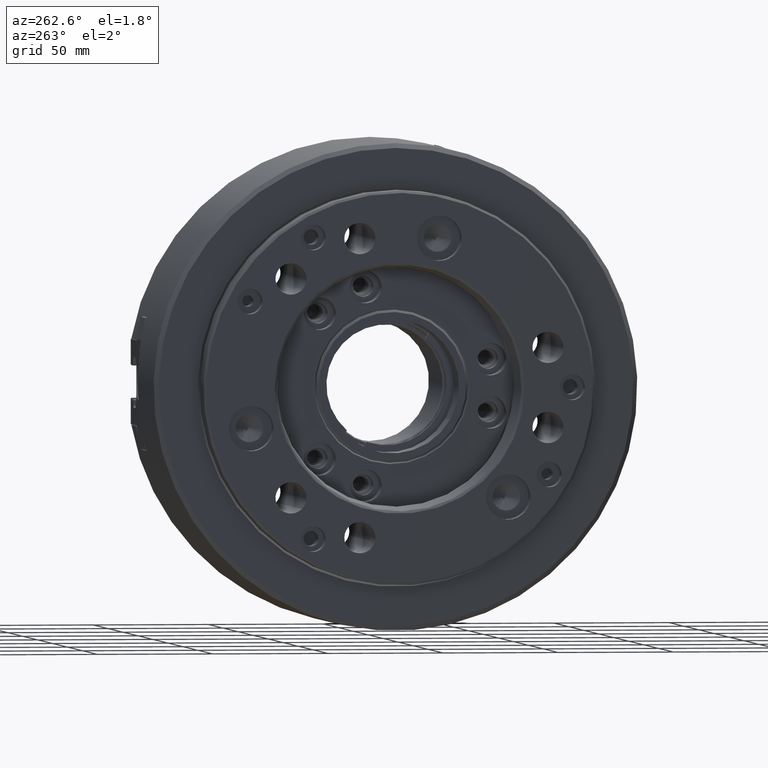
[diagram: clean part render]
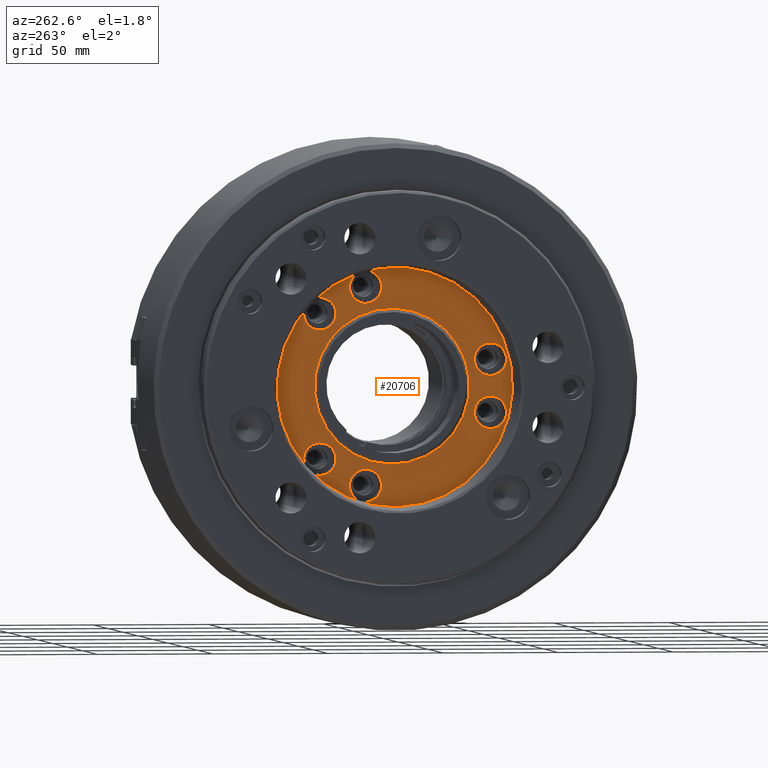
[diagram: same view with one face highlighted and labeled with its STEP entity id]
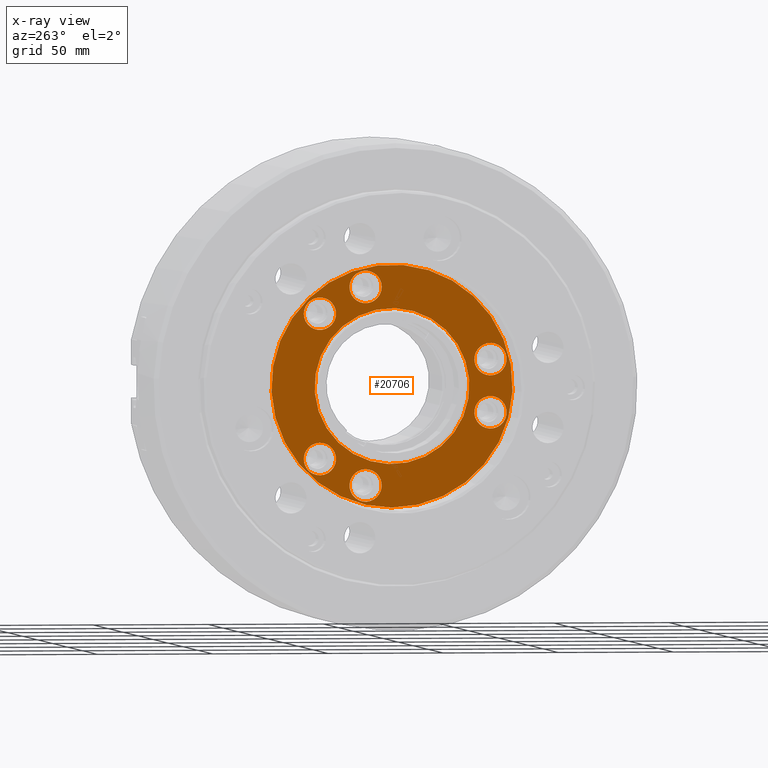
[diagram: x-ray of the same camera — body ghosted, the highlighted face saturated]
A machine part, auxiliary view. The second image highlights one B-rep face of the part: STEP entity #20706.
The next image is the same camera in x-ray: the body ghosted, the highlighted face saturated — about 0% of this face is hidden behind the body in this view.
In plain terms, the highlighted planar face has unit normal (1, 0, 0).
Its self-contained STEP definition (entity closure, byte-faithful):
#4734=PLANE('',#22223);
#6481=ORIENTED_EDGE('',*,*,#12244,.T.);
#6482=ORIENTED_EDGE('',*,*,#12242,.F.);
#6483=ORIENTED_EDGE('',*,*,#12239,.T.);
#6484=ORIENTED_EDGE('',*,*,#12236,.T.);
#6485=ORIENTED_EDGE('',*,*,#12245,.T.);
#6486=ORIENTED_EDGE('',*,*,#12246,.T.);
#6487=ORIENTED_EDGE('',*,*,#12247,.T.);
#6488=ORIENTED_EDGE('',*,*,#12248,.T.);
#12236=EDGE_CURVE('',#15184,#15184,#16950,.T.);
#12239=EDGE_CURVE('',#15187,#15187,#16953,.T.);
#12242=EDGE_CURVE('',#15190,#15190,#16956,.T.);
#12244=EDGE_CURVE('',#15192,#15192,#16958,.T.);
#12245=EDGE_CURVE('',#15193,#15193,#16959,.T.);
#12246=EDGE_CURVE('',#15194,#15194,#16960,.T.);
#12247=EDGE_CURVE('',#15195,#15195,#16961,.T.);
#12248=EDGE_CURVE('',#15196,#15196,#16962,.T.);
#15184=VERTEX_POINT('',#31312);
#15187=VERTEX_POINT('',#31321);
#15190=VERTEX_POINT('',#31330);
#15192=VERTEX_POINT('',#31335);
#15193=VERTEX_POINT('',#31337);
#15194=VERTEX_POINT('',#31339);
#15195=VERTEX_POINT('',#31341);
#15196=VERTEX_POINT('',#31343);
#16950=CIRCLE('',#22209,7.);
#16953=CIRCLE('',#22215,7.);
#16956=CIRCLE('',#22221,33.6);
#16958=CIRCLE('',#22224,52.35);
#16959=CIRCLE('',#22225,7.);
#16960=CIRCLE('',#22226,7.);
#16961=CIRCLE('',#22227,7.);
#16962=CIRCLE('',#22228,7.);
#17720=EDGE_LOOP('',(#6481));
#17721=EDGE_LOOP('',(#6482));
#17722=EDGE_LOOP('',(#6483));
#17723=EDGE_LOOP('',(#6484));
#17724=EDGE_LOOP('',(#6485));
#17725=EDGE_LOOP('',(#6486));
#17726=EDGE_LOOP('',(#6487));
#17727=EDGE_LOOP('',(#6488));
#19156=FACE_BOUND('',#17720,.T.);
#19157=FACE_BOUND('',#17721,.T.);
#19158=FACE_BOUND('',#17722,.T.);
#19159=FACE_BOUND('',#17723,.T.);
#19160=FACE_BOUND('',#17724,.T.);
#19161=FACE_BOUND('',#17725,.T.);
#19162=FACE_BOUND('',#17726,.T.);
#19163=FACE_BOUND('',#17727,.T.);
#20706=ADVANCED_FACE('',(#19156,#19157,#19158,#19159,#19160,#19161,#19162,
#19163),#4734,.F.);
#22209=AXIS2_PLACEMENT_3D('',#31311,#24964,#24965);
#22215=AXIS2_PLACEMENT_3D('',#31320,#24976,#24977);
#22221=AXIS2_PLACEMENT_3D('',#31329,#24988,#24989);
#22223=AXIS2_PLACEMENT_3D('',#31333,#24992,#24993);
#22224=AXIS2_PLACEMENT_3D('',#31334,#24994,#24995);
#22225=AXIS2_PLACEMENT_3D('',#31336,#24996,#24997);
#22226=AXIS2_PLACEMENT_3D('',#31338,#24998,#24999);
#22227=AXIS2_PLACEMENT_3D('',#31340,#25000,#25001);
#22228=AXIS2_PLACEMENT_3D('',#31342,#25002,#25003);
#24964=DIRECTION('',(1.,0.,0.));
#24965=DIRECTION('',(0.,-0.5,0.866025403784438));
#24976=DIRECTION('',(1.,0.,0.));
#24977=DIRECTION('',(0.,-0.5,0.866025403784438));
#24988=DIRECTION('',(-1.,0.,0.));
#24989=DIRECTION('',(0.,-0.5,0.866025403784438));
#24992=DIRECTION('',(1.,0.,0.));
#24993=DIRECTION('',(0.,0.5,-0.866025403784438));
#24994=DIRECTION('',(-1.,0.,0.));
#24995=DIRECTION('',(0.,-0.5,0.866025403784438));
#24996=DIRECTION('',(1.,0.,0.));
#24997=DIRECTION('',(0.,1.,5.55111512312578E-16));
#24998=DIRECTION('',(1.,0.,0.));
#24999=DIRECTION('',(0.,1.,5.55111512312578E-16));
#25000=DIRECTION('',(1.,0.,0.));
#25001=DIRECTION('',(0.,-0.499999999999999,-0.866025403784439));
#25002=DIRECTION('',(1.,0.,0.));
#25003=DIRECTION('',(0.,-0.499999999999999,-0.866025403784439));
#31311=CARTESIAN_POINT('',(-78.7262345679012,-42.7422178132913,-11.4527427457866));
#31312=CARTESIAN_POINT('',(-78.7262345679012,-46.2422178132913,-5.39056491929554));
#31320=CARTESIAN_POINT('',(-78.7262345679012,-42.7422178132912,11.4527427457865));
#31321=CARTESIAN_POINT('',(-78.7262345679012,-46.2422178132912,17.5149205722776));
#31329=CARTESIAN_POINT('',(-78.7262345679012,0.,0.));
#31330=CARTESIAN_POINT('',(-78.7262345679012,-16.8,29.0984535671571));
#31333=CARTESIAN_POINT('',(-78.7262345679012,-26.175,45.3364298881154));
#31334=CARTESIAN_POINT('',(-78.7262345679012,0.,0.));
#31335=CARTESIAN_POINT('',(-78.7262345679012,-26.175,45.3364298881154));
#31336=CARTESIAN_POINT('',(-78.7262345679012,11.4527427457865,42.7422178132912));
#31337=CARTESIAN_POINT('',(-78.7262345679012,18.4527427457865,42.7422178132912));
#31338=CARTESIAN_POINT('',(-78.7262345679012,31.2894750675047,31.2894750675048));
#31339=CARTESIAN_POINT('',(-78.7262345679012,38.2894750675047,31.2894750675048));
#31340=CARTESIAN_POINT('',(-78.7262345679012,31.2894750675048,-31.2894750675047));
#31341=CARTESIAN_POINT('',(-78.7262345679012,27.7894750675048,-37.3516528939958));
#31342=CARTESIAN_POINT('',(-78.7262345679012,11.4527427457866,-42.7422178132913));
#31343=CARTESIAN_POINT('',(-78.7262345679012,7.95274274578662,-48.8043956397823));